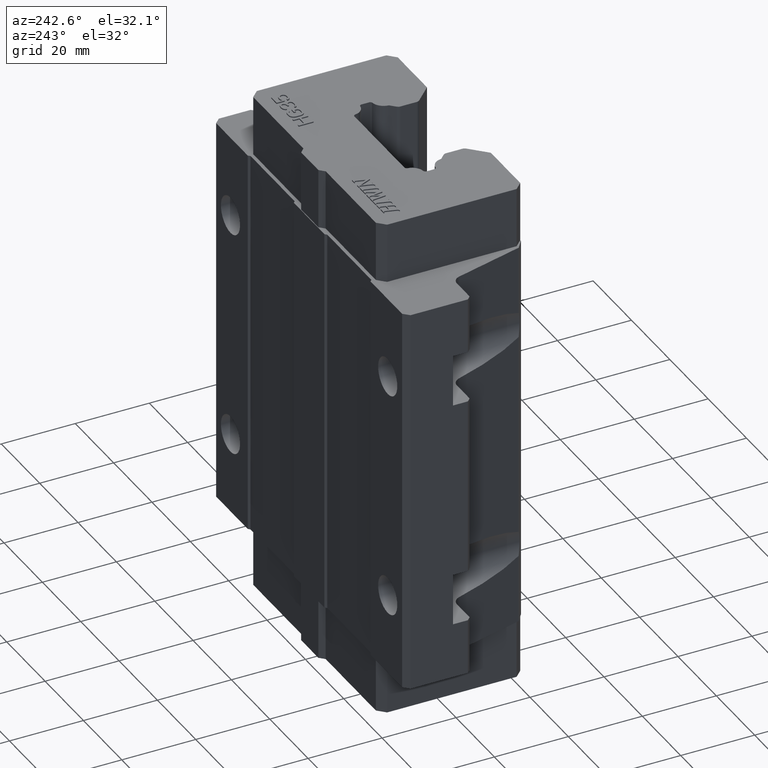
[diagram: clean part render]
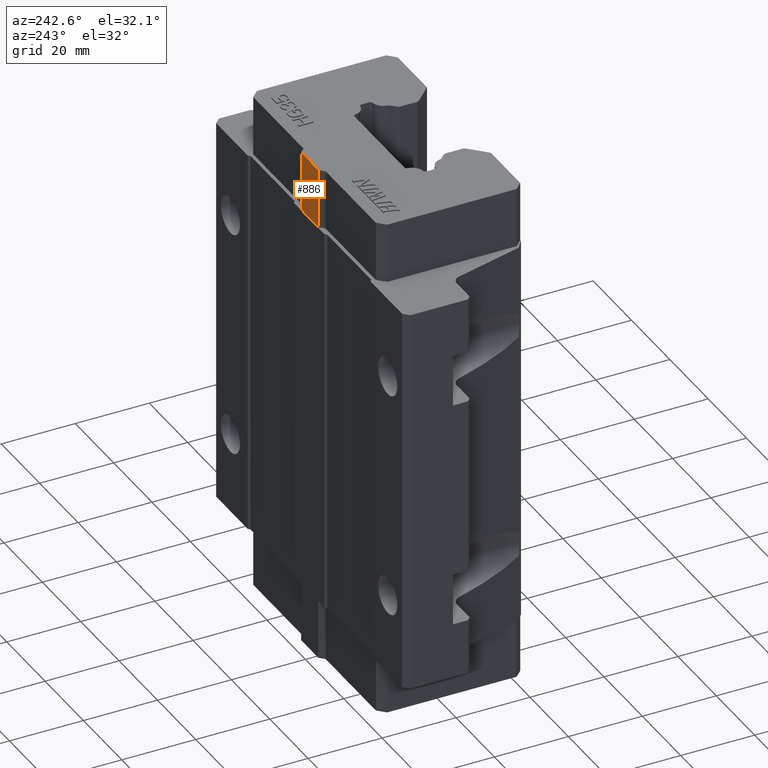
[diagram: same view with one face highlighted and labeled with its STEP entity id]
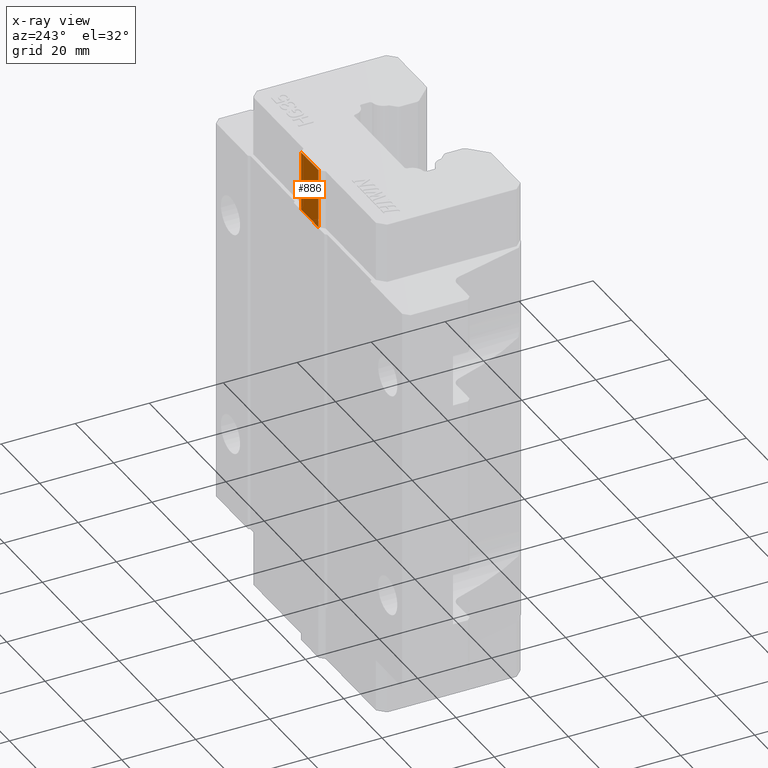
[diagram: x-ray of the same camera — body ghosted, the highlighted face saturated]
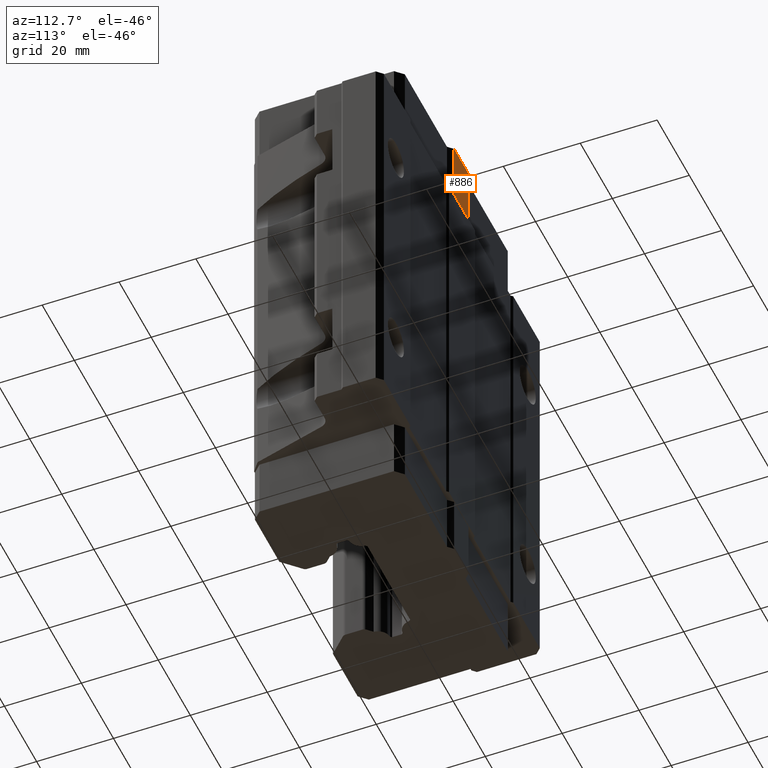
[diagram: same view with one face highlighted and labeled with its STEP entity id]
A machine part, auxiliary view. The second image highlights one B-rep face of the part: STEP entity #886.
The next image is the same camera in x-ray: the body ghosted, the highlighted face saturated — about 0% of this face is hidden behind the body in this view.
A second angle (auxiliary view) of the same face is appended — the face is thin or edge-on in the first view.
In plain terms, the highlighted planar face has unit normal (0, 1, 0).
Its self-contained STEP definition (entity closure, byte-faithful):
#522 = EDGE_LOOP ( 'NONE', ( #14518, #14505, #14507, #14514 ) ) ;
#871 = VERTEX_POINT ( 'NONE', #13635 ) ;
#886 = ADVANCED_FACE ( 'NONE', ( #13608 ), #13663, .T. ) ;
#4441 = DIRECTION ( 'NONE',  ( 0.0000000000000000000, 0.0000000000000000000, -1.000000000000000000 ) ) ;
#4442 = VECTOR ( 'NONE', #4441, 1000.000000000000000 ) ;
#4443 = CARTESIAN_POINT ( 'NONE',  ( -4.546479867228000200, 18.84575714773000100, 52.90000000000000600 ) ) ;
#4457 = LINE ( 'NONE', #4443, #4442 ) ;
#4458 = CARTESIAN_POINT ( 'NONE',  ( -4.546479867228000200, 18.84575714773000100, 69.09999999999999400 ) ) ;
#4490 = DIRECTION ( 'NONE',  ( -1.000000000000000000, 0.0000000000000000000, 0.0000000000000000000 ) ) ;
#4491 = VECTOR ( 'NONE', #4490, 1000.000000000000000 ) ;
#4494 = CARTESIAN_POINT ( 'NONE',  ( 0.0000000000000000000, 18.84575714773000100, 69.09999999999999400 ) ) ;
#4495 = LINE ( 'NONE', #4494, #4491 ) ;
#4497 = DIRECTION ( 'NONE',  ( 0.0000000000000000000, 0.0000000000000000000, -1.000000000000000000 ) ) ;
#4498 = VECTOR ( 'NONE', #4497, 1000.000000000000000 ) ;
#4499 = CARTESIAN_POINT ( 'NONE',  ( 4.453520132771999800, 18.84575714773000100, 52.90000000000000600 ) ) ;
#4500 = LINE ( 'NONE', #4499, #4498 ) ;
#5417 = EDGE_CURVE ( 'NONE', #5435, #10203, #7829, .T. ) ;
#5435 = VERTEX_POINT ( 'NONE', #7807 ) ;
#7807 = CARTESIAN_POINT ( 'NONE',  ( 4.453520132772029100, 18.84575714773003000, 52.90000000000000600 ) ) ;
#7826 = DIRECTION ( 'NONE',  ( -1.000000000000000000, 0.0000000000000000000, 0.0000000000000000000 ) ) ;
#7827 = VECTOR ( 'NONE', #7826, 1000.000000000000000 ) ;
#7828 = CARTESIAN_POINT ( 'NONE',  ( 4.453520132771999800, 18.84575714773000100, 52.90000000000000600 ) ) ;
#7829 = LINE ( 'NONE', #7828, #7827 ) ;
#8926 = CARTESIAN_POINT ( 'NONE',  ( -4.546479867228000200, 18.84575714773000100, 52.90000000000000600 ) ) ;
#10203 = VERTEX_POINT ( 'NONE', #8926 ) ;
#13608 = FACE_OUTER_BOUND ( 'NONE', #522, .T. ) ;
#13635 = CARTESIAN_POINT ( 'NONE',  ( 4.453520132771999800, 18.84575714773000100, 69.09999999999999400 ) ) ;
#13659 = DIRECTION ( 'NONE',  ( 0.0000000000000000000, 0.0000000000000000000, 1.000000000000000000 ) ) ;
#13660 = DIRECTION ( 'NONE',  ( 0.0000000000000000000, 1.000000000000000000, 0.0000000000000000000 ) ) ;
#13661 = CARTESIAN_POINT ( 'NONE',  ( 4.453520132771999800, 18.84575714773000100, 52.90000000000000600 ) ) ;
#13662 = AXIS2_PLACEMENT_3D ( 'NONE', #13661, #13660, #13659 ) ;
#13663 = PLANE ( 'NONE',  #13662 ) ;
#14504 = VERTEX_POINT ( 'NONE', #4458 ) ;
#14505 = ORIENTED_EDGE ( 'NONE', *, *, #5417, .T. ) ;
#14507 = ORIENTED_EDGE ( 'NONE', *, *, #14508, .F. ) ;
#14508 = EDGE_CURVE ( 'NONE', #14504, #10203, #4457, .T. ) ;
#14514 = ORIENTED_EDGE ( 'NONE', *, *, #14521, .F. ) ;
#14518 = ORIENTED_EDGE ( 'NONE', *, *, #14520, .T. ) ;
#14520 = EDGE_CURVE ( 'NONE', #871, #5435, #4500, .T. ) ;
#14521 = EDGE_CURVE ( 'NONE', #871, #14504, #4495, .T. ) ;